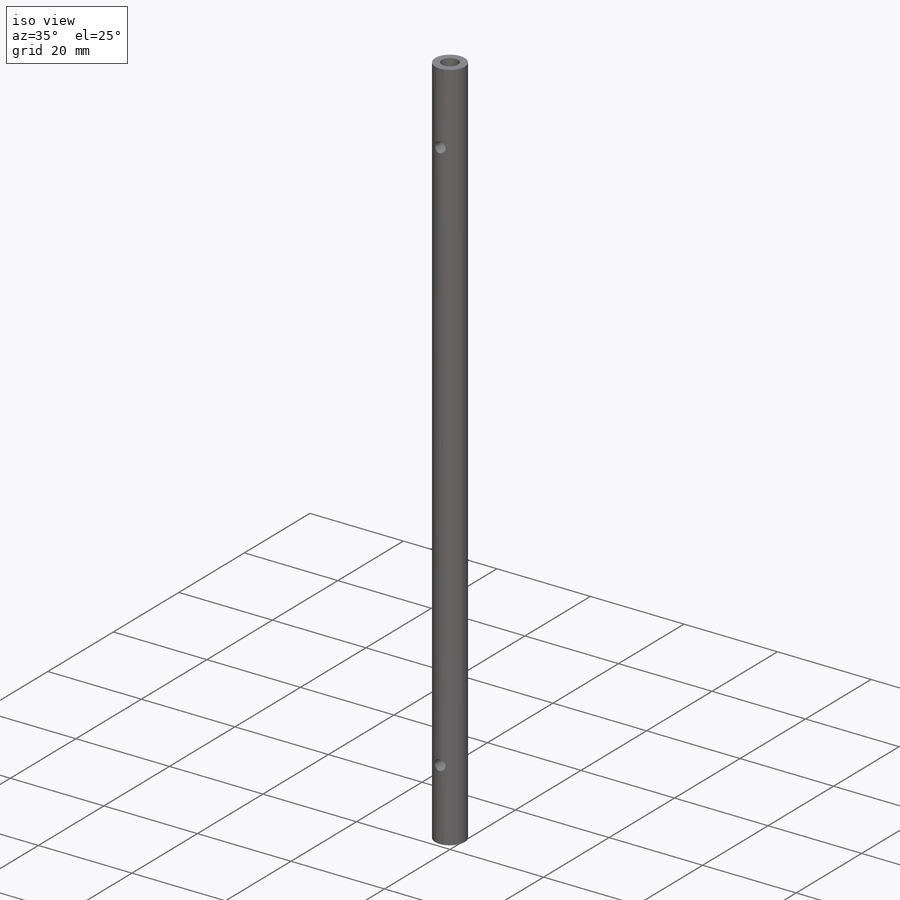
[diagram: iso view]
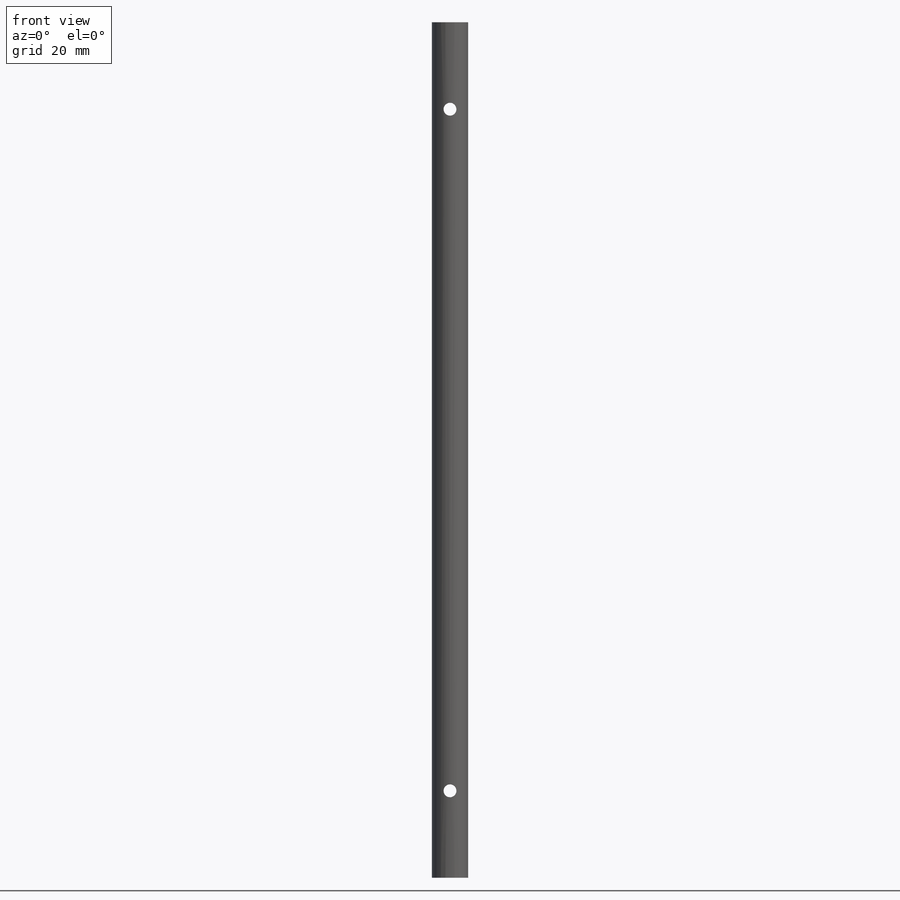
[diagram: front view]
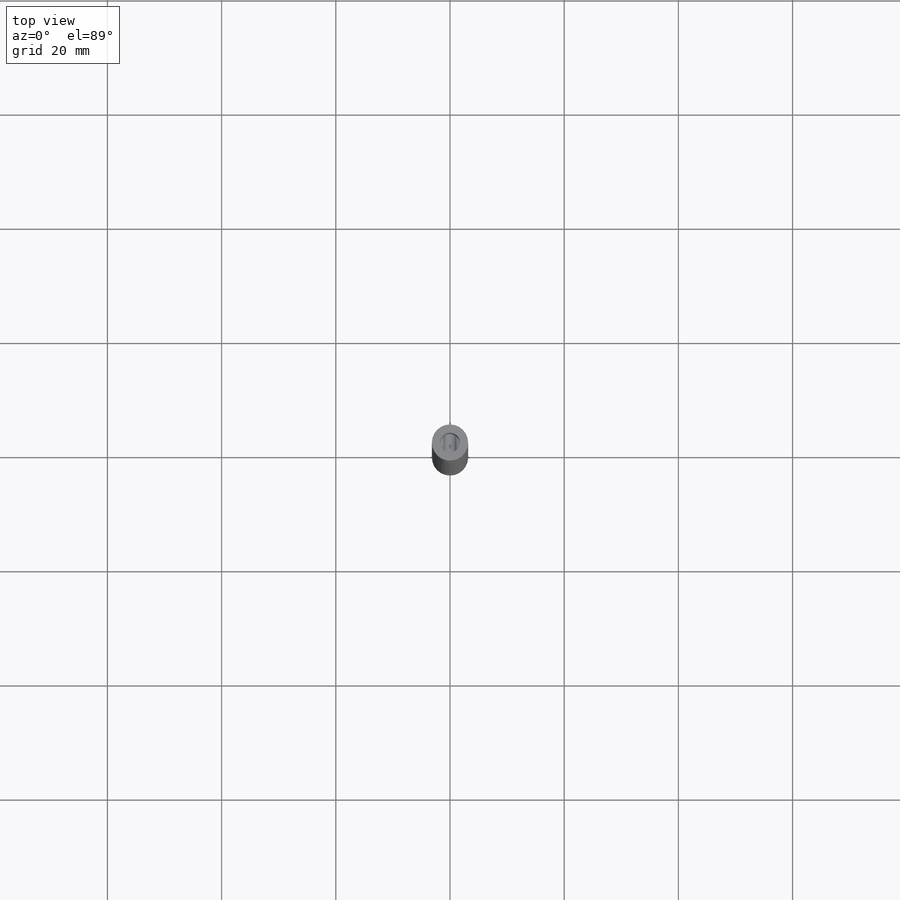
[diagram: top view]
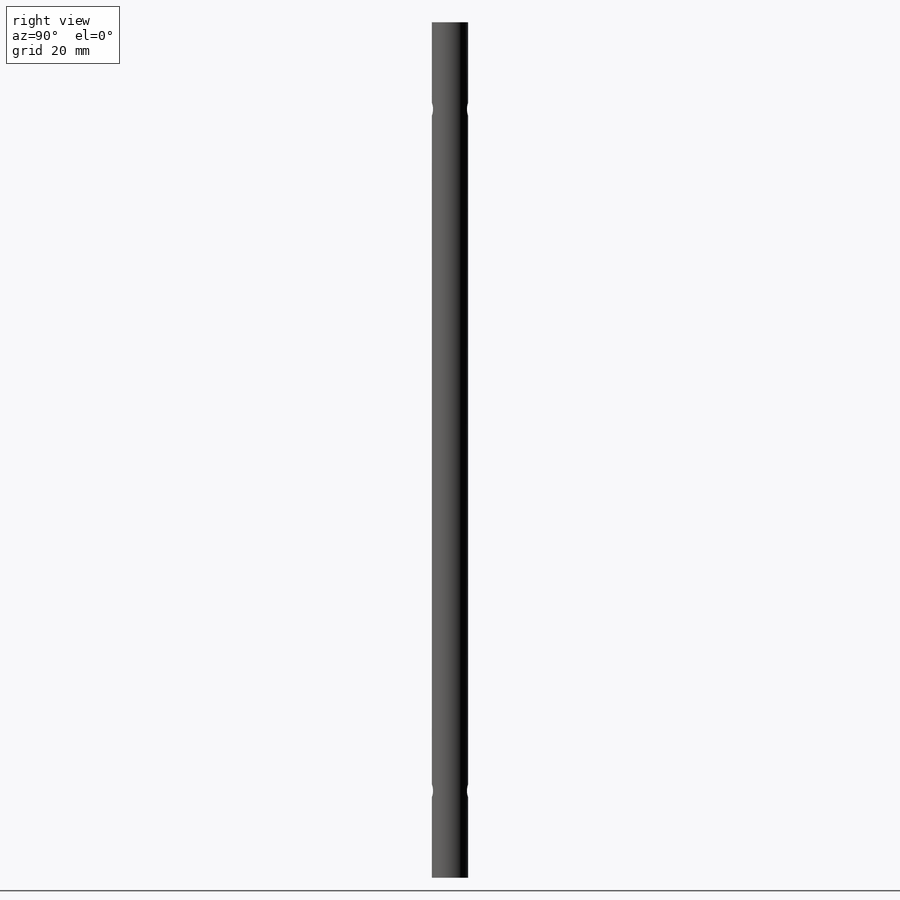
[diagram: right view]
SOLIDWORKS PART (.sldprt)
format: sldprt  version: not decoded by parser v0  size: 196,608 bytes
history: native  units: mm
features: sketch x6, hole x2, thread x2, material x1, extrude x1, cut_extrude x1 (+11 scaffold rows collapsed)
feature tree (24):
  scaffold x11  (default folders/planes/origin — collapsed)
  material  "1060 Alloy"
  sketch  "Sketch1"  dims[D1=6.35mm]
  extrude  "Boss-Extrude1"  Depth=149.86mm
  hole  "#8-32 Tapped Hole1"  Diameter=3.4544mm Depth=12.7mm
  sketch  "Sketch3"
  sketch  "Sketch2"  dims[hole-wizard template sketch: 47 standard entries collapsed; hole parameters kept: c15.Tap Drill Depth=12.7mm c15.D3=~14.816244mm c15.Drill Angle=118.0deg]
  thread  "Hole Thread1"  Diameter=12.7mm  [1 undecoded]
  hole  "#8-32 Tapped Hole2"  Diameter=3.4544mm Depth=15.0876mm
  sketch  "Sketch5"
  sketch  "Sketch4"  dims[hole-wizard template sketch: 47 standard entries collapsed; hole parameters kept: c15.Tap Drill Depth=15.0876mm c15.D3=~14.816244mm c15.Drill Angle=118.0deg]
  thread  "Hole Thread2"  Diameter=12.7mm  [1 undecoded]
  sketch  "Sketch6"  dims[D3=2.2606mm D4=2.2606mm D1=15.24mm D2=15.24mm]
  cut_extrude  "Cut-Extrude1"  [1 undecoded]
decode coverage: 9 of 12 modeling features carry decoded parameters
note: ~ marks probable driven/reference dimensions
note: 3 parameter values undecoded
note: suppression state not decoded; provenance and decode notes live in map.json
